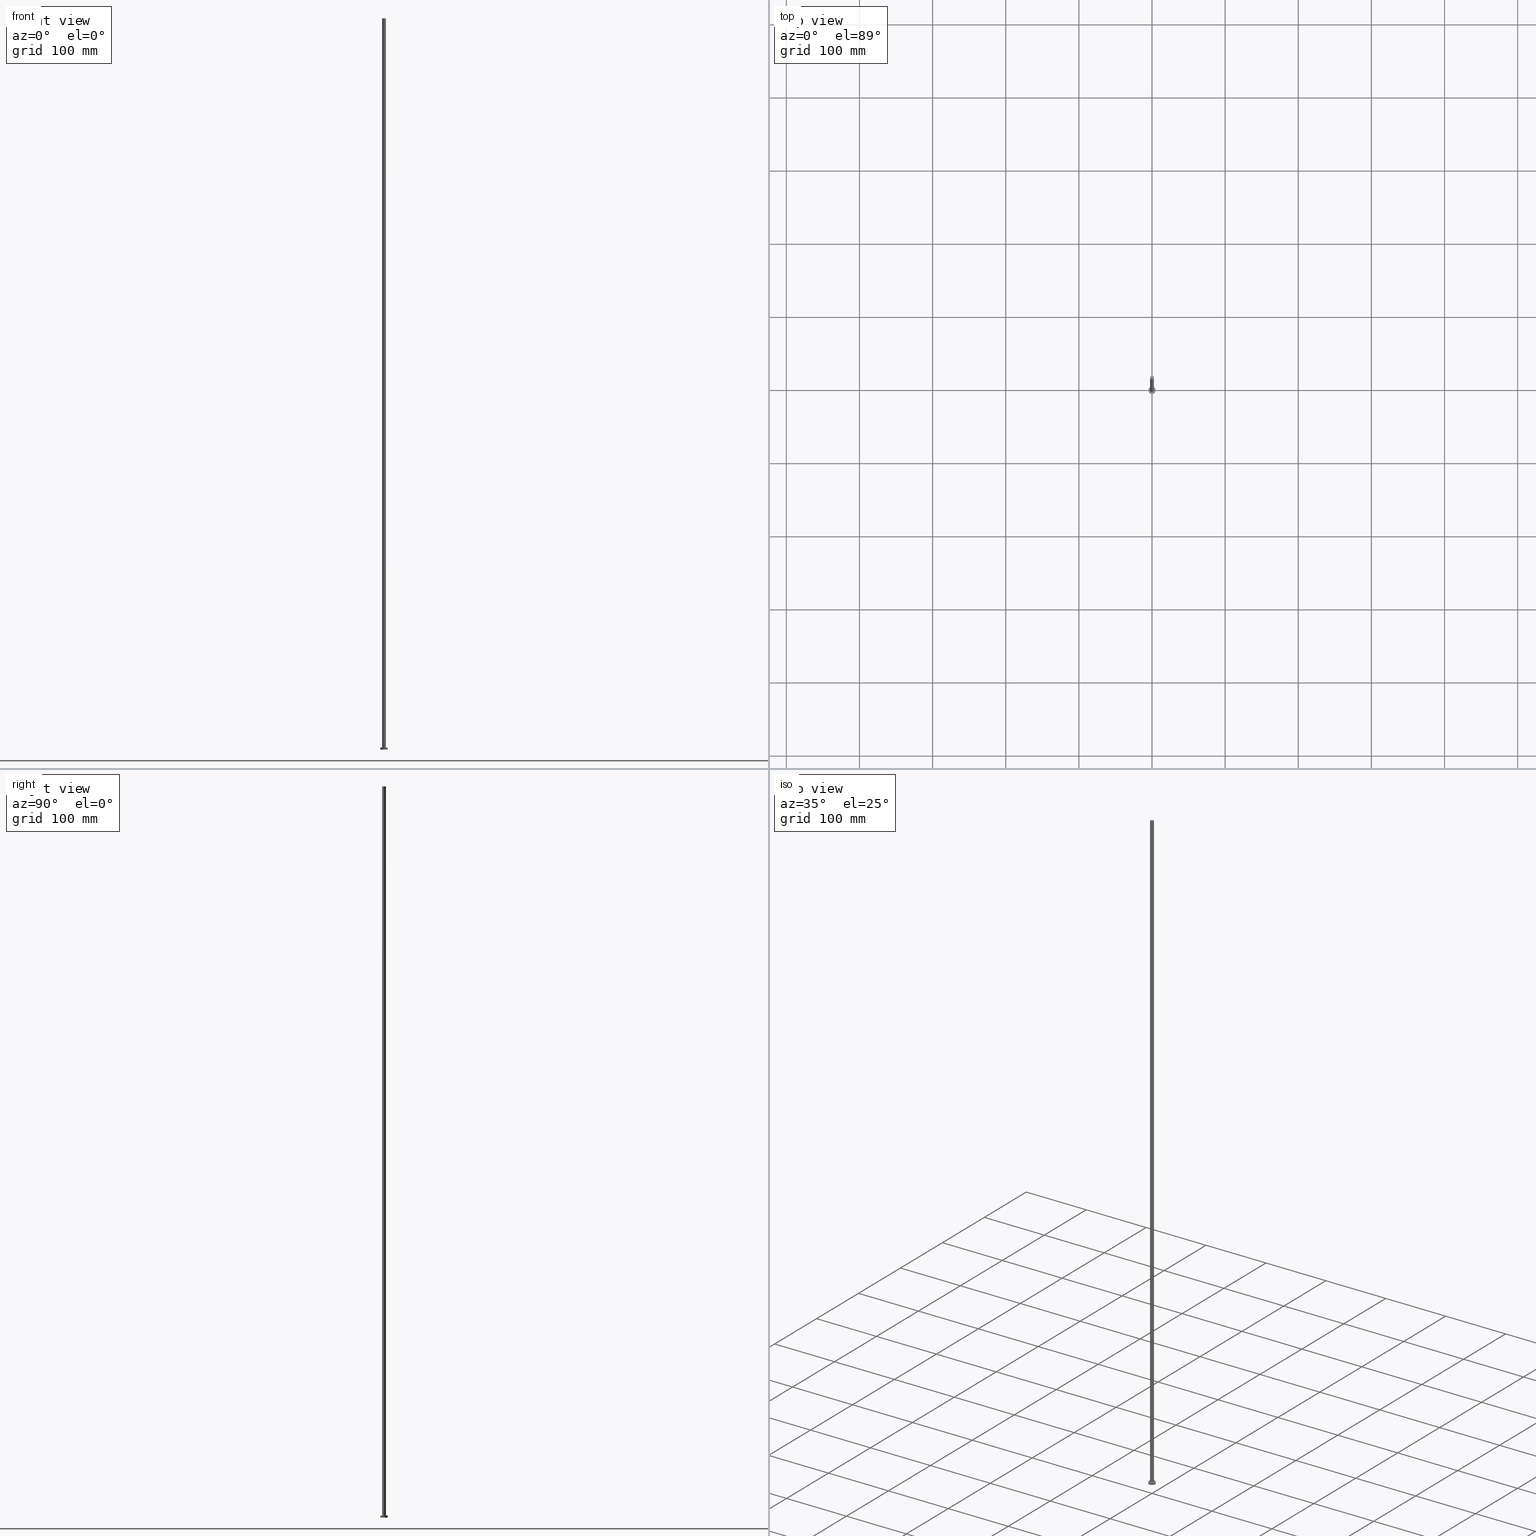
[diagram: canonical four-view strip — front | top / right | iso, engineering-drawing reading convention]
A machine part, canonical four-view strip (front | top / right | iso — engineering-drawing reading convention). The complete STEP part file that produces these views, byte-faithful:
ISO-10303-21;
HEADER;
FILE_DESCRIPTION (( 'STEP AP203' ),
    '1' );
FILE_NAME ('1fdd.STEP',
    '2023-02-12T12:28:38',
    ( '' ),
    ( '' ),
    'SwSTEP 2.0',
    'SolidWorks 2019',
    '' );
FILE_SCHEMA (( 'CONFIG_CONTROL_DESIGN' ));
ENDSEC;

DATA;
#1 = DIRECTION ( 'NONE',  ( -0.000000000000000000, -0.000000000000000000, -1.000000000000000000 ) ) ;
#2 = PRODUCT_RELATED_PRODUCT_CATEGORY ( 'detail', '', ( #223 ) ) ;
#3 = CARTESIAN_POINT ( 'NONE',  ( 0.000000000000000000, 0.000000000000000000, 0.000000000000000000 ) ) ;
#4 = ORIENTED_EDGE ( 'NONE', *, *, #109, .F. ) ;
#5 = DIRECTION ( 'NONE',  ( -1.000000000000000000, 0.000000000000000000, 0.000000000000000000 ) ) ;
#6 = FACE_OUTER_BOUND ( 'NONE', #26, .T. ) ;
#7 = DIRECTION ( 'NONE',  ( 0.000000000000000000, 0.000000000000000000, 1.000000000000000000 ) ) ;
#8 = ORGANIZATION ( 'NEUR�EN�', 'NEUR�EN�', '' ) ;
#9 = AXIS2_PLACEMENT_3D ( 'NONE', #173, #243, #71 ) ;
#10 = CARTESIAN_POINT ( 'NONE',  ( 0.000000000000000000, 0.000000000000000000, 0.000000000000000000 ) ) ;
#11 = EDGE_CURVE ( 'NONE', #87, #127, #221, .T. ) ;
#12 = APPROVAL_DATE_TIME ( #196, #16 ) ;
#13 = MECHANICAL_CONTEXT ( 'NONE', #92, 'mechanical' ) ;
#14 = AXIS2_PLACEMENT_3D ( 'NONE', #222, #51, #206 ) ;
#15 = AXIS2_PLACEMENT_3D ( 'NONE', #10, #179, #158 ) ;
#16 = APPROVAL ( #226, 'NEUR�EN�' ) ;
#17 = PERSON_AND_ORGANIZATION_ROLE ( 'creator' ) ;
#18 =( LENGTH_UNIT ( ) NAMED_UNIT ( * ) SI_UNIT ( .MILLI., .METRE. ) );
#19 = APPROVAL_STATUS ( 'not_yet_approved' ) ;
#20 = APPROVAL_DATE_TIME ( #42, #50 ) ;
#21 = PERSON_AND_ORGANIZATION_ROLE ( 'classification_officer' ) ;
#22 = VERTEX_POINT ( 'NONE', #224 ) ;
#23 = FACE_OUTER_BOUND ( 'NONE', #43, .T. ) ;
#24 = CC_DESIGN_PERSON_AND_ORGANIZATION_ASSIGNMENT ( #121, #17, ( #86 ) ) ;
#25 = CARTESIAN_POINT ( 'NONE',  ( -2.500000000000000000, 0.000000000000000000, 1000.000000000000000 ) ) ;
#26 = EDGE_LOOP ( 'NONE', ( #105, #166, #64, #142 ) ) ;
#27 = EDGE_CURVE ( 'NONE', #187, #87, #53, .T. ) ;
#28 = LINE ( 'NONE', #49, #152 ) ;
#29 = DIRECTION ( 'NONE',  ( 0.000000000000000000, 0.000000000000000000, 1.000000000000000000 ) ) ;
#30 =( GEOMETRIC_REPRESENTATION_CONTEXT ( 3 ) GLOBAL_UNCERTAINTY_ASSIGNED_CONTEXT ( ( #188 ) ) GLOBAL_UNIT_ASSIGNED_CONTEXT ( ( #18, #96, #162 ) ) REPRESENTATION_CONTEXT ( 'NONE', 'WORKASPACE' ) );
#31 = CARTESIAN_POINT ( 'NONE',  ( 2.500000000000000000, 3.061616997868383141E-16, 1000.000000000000000 ) ) ;
#32 = CARTESIAN_POINT ( 'NONE',  ( 0.000000000000000000, 0.000000000000000000, 3.000000000000000000 ) ) ;
#33 = CARTESIAN_POINT ( 'NONE',  ( 0.000000000000000000, 0.000000000000000000, 3.000000000000000000 ) ) ;
#34 = EDGE_CURVE ( 'NONE', #187, #200, #195, .T. ) ;
#35 = DIRECTION ( 'NONE',  ( -0.000000000000000000, -0.000000000000000000, -1.000000000000000000 ) ) ;
#36 = CIRCLE ( 'NONE', #102, 2.500000000000000000 ) ;
#37 = ADVANCED_FACE ( 'NONE', ( #128 ), #184, .T. ) ;
#38 = CARTESIAN_POINT ( 'NONE',  ( 2.500000000000000000, 3.061616997868383141E-16, 1000.000000000000000 ) ) ;
#39 = VECTOR ( 'NONE', #1, 1000.000000000000000 ) ;
#40 = ORIENTED_EDGE ( 'NONE', *, *, #235, .T. ) ;
#41 = SECURITY_CLASSIFICATION_LEVEL ( 'unclassified' ) ;
#42 = DATE_AND_TIME ( #98, #78 ) ;
#43 = EDGE_LOOP ( 'NONE', ( #90, #216, #107, #215 ) ) ;
#44 = DIRECTION ( 'NONE',  ( 1.000000000000000000, 0.000000000000000000, -0.000000000000000000 ) ) ;
#45 = VERTEX_POINT ( 'NONE', #231 ) ;
#46 = SECURITY_CLASSIFICATION ( '', '', #41 ) ;
#47 = DIRECTION ( 'NONE',  ( 1.000000000000000000, 0.000000000000000000, 0.000000000000000000 ) ) ;
#48 = ORIENTED_EDGE ( 'NONE', *, *, #34, .T. ) ;
#49 = CARTESIAN_POINT ( 'NONE',  ( -5.000000000000000000, 0.000000000000000000, 3.000000000000000000 ) ) ;
#50 = APPROVAL ( #19, 'NEUR�EN�' ) ;
#51 = DIRECTION ( 'NONE',  ( 0.000000000000000000, 0.000000000000000000, 1.000000000000000000 ) ) ;
#52 = VECTOR ( 'NONE', #132, 1000.000000000000000 ) ;
#53 = LINE ( 'NONE', #135, #122 ) ;
#54 = CARTESIAN_POINT ( 'NONE',  ( 0.000000000000000000, 0.000000000000000000, 1000.000000000000000 ) ) ;
#55 = APPROVAL_ROLE ( '' ) ;
#56 = COORDINATED_UNIVERSAL_TIME_OFFSET ( 1, 0, .AHEAD. ) ;
#57 = PERSON_AND_ORGANIZATION ( #214, #8 ) ;
#58 = CIRCLE ( 'NONE', #163, 5.000000000000000000 ) ;
#59 = ADVANCED_FACE ( 'NONE', ( #65 ), #232, .F. ) ;
#60 = DIRECTION ( 'NONE',  ( 0.000000000000000000, 0.000000000000000000, 1.000000000000000000 ) ) ;
#61 = FACE_OUTER_BOUND ( 'NONE', #85, .T. ) ;
#62 = EDGE_LOOP ( 'NONE', ( #185, #252, #203, #143 ) ) ;
#63 = PERSON_AND_ORGANIZATION_ROLE ( 'design_supplier' ) ;
#64 = ORIENTED_EDGE ( 'NONE', *, *, #11, .T. ) ;
#65 = FACE_OUTER_BOUND ( 'NONE', #254, .T. ) ;
#66 = PERSON_AND_ORGANIZATION_ROLE ( 'creator' ) ;
#67 = EDGE_LOOP ( 'NONE', ( #40, #48 ) ) ;
#68 = CARTESIAN_POINT ( 'NONE',  ( 0.000000000000000000, 0.000000000000000000, 3.000000000000000000 ) ) ;
#69 = ADVANCED_BREP_SHAPE_REPRESENTATION ( '1fdd', ( #182, #15 ), #30 ) ;
#70 = DIRECTION ( 'NONE',  ( 0.000000000000000000, 0.000000000000000000, 1.000000000000000000 ) ) ;
#71 = DIRECTION ( 'NONE',  ( 1.000000000000000000, 0.000000000000000000, 0.000000000000000000 ) ) ;
#72 = AXIS2_PLACEMENT_3D ( 'NONE', #81, #83, #165 ) ;
#73 = ADVANCED_FACE ( 'NONE', ( #61 ), #101, .T. ) ;
#74 = CARTESIAN_POINT ( 'NONE',  ( -5.000000000000000000, 0.000000000000000000, 3.000000000000000000 ) ) ;
#75 = APPLICATION_PROTOCOL_DEFINITION ( 'international standard', 'config_control_design', 1994, #172 ) ;
#76 = DATE_TIME_ROLE ( 'creation_date' ) ;
#77 = CC_DESIGN_APPROVAL ( #50, ( #46 ) ) ;
#78 = LOCAL_TIME ( 13, 28, 38.00000000000000000, #227 ) ;
#79 = ORIENTED_EDGE ( 'NONE', *, *, #201, .F. ) ;
#80 = EDGE_CURVE ( 'NONE', #45, #22, #213, .T. ) ;
#81 = CARTESIAN_POINT ( 'NONE',  ( 0.000000000000000000, 0.000000000000000000, 1000.000000000000000 ) ) ;
#82 = COORDINATED_UNIVERSAL_TIME_OFFSET ( 1, 0, .AHEAD. ) ;
#83 = DIRECTION ( 'NONE',  ( -0.000000000000000000, -0.000000000000000000, -1.000000000000000000 ) ) ;
#84 = CARTESIAN_POINT ( 'NONE',  ( 5.000000000000000000, 6.123233995736766282E-16, 0.000000000000000000 ) ) ;
#85 = EDGE_LOOP ( 'NONE', ( #145, #151 ) ) ;
#86 = PRODUCT_DEFINITION_FORMATION_WITH_SPECIFIED_SOURCE ( 'LIBOVOLN�', '', #223, .NOT_KNOWN. ) ;
#87 = VERTEX_POINT ( 'NONE', #84 ) ;
#88 = CC_DESIGN_APPROVAL ( #16, ( #86 ) ) ;
#89 = CARTESIAN_POINT ( 'NONE',  ( 0.000000000000000000, 0.000000000000000000, 3.000000000000000000 ) ) ;
#90 = ORIENTED_EDGE ( 'NONE', *, *, #27, .F. ) ;
#91 = DIRECTION ( 'NONE',  ( -0.000000000000000000, -0.000000000000000000, -1.000000000000000000 ) ) ;
#92 = APPLICATION_CONTEXT ( 'configuration controlled 3d designs of mechanical parts and assemblies' ) ;
#93 = DATE_AND_TIME ( #189, #183 ) ;
#94 = AXIS2_PLACEMENT_3D ( 'NONE', #89, #29, #174 ) ;
#95 = CIRCLE ( 'NONE', #230, 2.500000000000000000 ) ;
#96 =( NAMED_UNIT ( * ) PLANE_ANGLE_UNIT ( ) SI_UNIT ( $, .RADIAN. ) );
#97 = APPROVAL ( #248, 'NEUR�EN�' ) ;
#98 = CALENDAR_DATE ( 2023, 12, 2 ) ;
#99 = DATE_AND_TIME ( #138, #233 ) ;
#100 = CC_DESIGN_DATE_AND_TIME_ASSIGNMENT ( #125, #180, ( #46 ) ) ;
#101 = PLANE ( 'NONE',  #240 ) ;
#102 = AXIS2_PLACEMENT_3D ( 'NONE', #32, #70, #155 ) ;
#103 = DIRECTION ( 'NONE',  ( 1.000000000000000000, 0.000000000000000000, 0.000000000000000000 ) ) ;
#104 = VERTEX_POINT ( 'NONE', #38 ) ;
#105 = ORIENTED_EDGE ( 'NONE', *, *, #34, .F. ) ;
#106 = CIRCLE ( 'NONE', #94, 5.000000000000000000 ) ;
#107 = ORIENTED_EDGE ( 'NONE', *, *, #167, .T. ) ;
#108 = CARTESIAN_POINT ( 'NONE',  ( 0.000000000000000000, 0.000000000000000000, 0.000000000000000000 ) ) ;
#109 = EDGE_CURVE ( 'NONE', #45, #104, #95, .T. ) ;
#110 = DIRECTION ( 'NONE',  ( 1.000000000000000000, 0.000000000000000000, 0.000000000000000000 ) ) ;
#111 = FACE_BOUND ( 'NONE', #171, .T. ) ;
#112 = ADVANCED_FACE ( 'NONE', ( #6 ), #114, .T. ) ;
#113 = ORIENTED_EDGE ( 'NONE', *, *, #80, .T. ) ;
#114 = CYLINDRICAL_SURFACE ( 'NONE', #210, 5.000000000000000000 ) ;
#115 = FACE_OUTER_BOUND ( 'NONE', #67, .T. ) ;
#116 = PLANE ( 'NONE',  #14 ) ;
#117 = DIRECTION ( 'NONE',  ( 0.000000000000000000, 0.000000000000000000, 1.000000000000000000 ) ) ;
#118 = AXIS2_PLACEMENT_3D ( 'NONE', #3, #60, #44 ) ;
#119 = DESIGN_CONTEXT ( 'detailed design', #172, 'design' ) ;
#120 = PRODUCT_DEFINITION ( 'NEZN�M�', '', #86, #119 ) ;
#121 = PERSON_AND_ORGANIZATION ( #214, #8 ) ;
#122 = VECTOR ( 'NONE', #207, 1000.000000000000000 ) ;
#123 = APPLICATION_PROTOCOL_DEFINITION ( 'international standard', 'config_control_design', 1994, #92 ) ;
#124 = ORIENTED_EDGE ( 'NONE', *, *, #11, .F. ) ;
#125 = DATE_AND_TIME ( #229, #169 ) ;
#126 = ORIENTED_EDGE ( 'NONE', *, *, #245, .F. ) ;
#127 = VERTEX_POINT ( 'NONE', #220 ) ;
#128 = FACE_OUTER_BOUND ( 'NONE', #62, .T. ) ;
#129 = CIRCLE ( 'NONE', #9, 2.500000000000000000 ) ;
#130 = DIRECTION ( 'NONE',  ( 1.000000000000000000, 0.000000000000000000, -0.000000000000000000 ) ) ;
#131 = DIRECTION ( 'NONE',  ( 1.000000000000000000, 0.000000000000000000, 0.000000000000000000 ) ) ;
#132 = DIRECTION ( 'NONE',  ( -0.000000000000000000, -0.000000000000000000, -1.000000000000000000 ) ) ;
#133 = APPROVAL_PERSON_ORGANIZATION ( #159, #16, #136 ) ;
#134 = EDGE_CURVE ( 'NONE', #104, #45, #129, .T. ) ;
#135 = CARTESIAN_POINT ( 'NONE',  ( 5.000000000000000000, 6.123233995736766282E-16, 3.000000000000000000 ) ) ;
#136 = APPROVAL_ROLE ( '' ) ;
#137 = SHAPE_DEFINITION_REPRESENTATION ( #190, #69 ) ;
#138 = CALENDAR_DATE ( 2023, 12, 2 ) ;
#139 = DIRECTION ( 'NONE',  ( 0.000000000000000000, 0.000000000000000000, 1.000000000000000000 ) ) ;
#140 = AXIS2_PLACEMENT_3D ( 'NONE', #54, #157, #5 ) ;
#141 = DIRECTION ( 'NONE',  ( -1.000000000000000000, 0.000000000000000000, 0.000000000000000000 ) ) ;
#142 = ORIENTED_EDGE ( 'NONE', *, *, #167, .F. ) ;
#143 = ORIENTED_EDGE ( 'NONE', *, *, #80, .F. ) ;
#144 = PERSON_AND_ORGANIZATION ( #214, #8 ) ;
#145 = ORIENTED_EDGE ( 'NONE', *, *, #109, .T. ) ;
#146 = CC_DESIGN_PERSON_AND_ORGANIZATION_ASSIGNMENT ( #250, #63, ( #86 ) ) ;
#147 = CARTESIAN_POINT ( 'NONE',  ( 0.000000000000000000, 0.000000000000000000, 1000.000000000000000 ) ) ;
#148 = ORIENTED_EDGE ( 'NONE', *, *, #201, .T. ) ;
#149 = DIRECTION ( 'NONE',  ( 0.000000000000000000, 0.000000000000000000, 1.000000000000000000 ) ) ;
#150 = CC_DESIGN_PERSON_AND_ORGANIZATION_ASSIGNMENT ( #228, #161, ( #223 ) ) ;
#151 = ORIENTED_EDGE ( 'NONE', *, *, #134, .T. ) ;
#152 = VECTOR ( 'NONE', #91, 1000.000000000000000 ) ;
#153 = DIRECTION ( 'NONE',  ( 0.000000000000000000, 0.000000000000000000, 1.000000000000000000 ) ) ;
#154 = COORDINATED_UNIVERSAL_TIME_OFFSET ( 1, 0, .AHEAD. ) ;
#155 = DIRECTION ( 'NONE',  ( 1.000000000000000000, 0.000000000000000000, 0.000000000000000000 ) ) ;
#156 = CARTESIAN_POINT ( 'NONE',  ( 0.000000000000000000, 0.000000000000000000, 0.000000000000000000 ) ) ;
#157 = DIRECTION ( 'NONE',  ( -0.000000000000000000, -0.000000000000000000, -1.000000000000000000 ) ) ;
#158 = DIRECTION ( 'NONE',  ( 1.000000000000000000, 0.000000000000000000, 0.000000000000000000 ) ) ;
#159 = PERSON_AND_ORGANIZATION ( #214, #8 ) ;
#160 = CC_DESIGN_APPROVAL ( #97, ( #120 ) ) ;
#161 = PERSON_AND_ORGANIZATION_ROLE ( 'design_owner' ) ;
#162 =( NAMED_UNIT ( * ) SI_UNIT ( $, .STERADIAN. ) SOLID_ANGLE_UNIT ( ) );
#163 = AXIS2_PLACEMENT_3D ( 'NONE', #108, #149, #110 ) ;
#164 = APPROVAL_PERSON_ORGANIZATION ( #249, #97, #55 ) ;
#165 = DIRECTION ( 'NONE',  ( -1.000000000000000000, 0.000000000000000000, 0.000000000000000000 ) ) ;
#166 = ORIENTED_EDGE ( 'NONE', *, *, #27, .T. ) ;
#167 = EDGE_CURVE ( 'NONE', #200, #127, #28, .T. ) ;
#168 = AXIS2_PLACEMENT_3D ( 'NONE', #225, #153, #47 ) ;
#169 = LOCAL_TIME ( 13, 28, 38.00000000000000000, #82 ) ;
#170 = CARTESIAN_POINT ( 'NONE',  ( 0.000000000000000000, 0.000000000000000000, 1000.000000000000000 ) ) ;
#171 = EDGE_LOOP ( 'NONE', ( #79, #199 ) ) ;
#172 = APPLICATION_CONTEXT ( 'configuration controlled 3d designs of mechanical parts and assemblies' ) ;
#173 = CARTESIAN_POINT ( 'NONE',  ( 0.000000000000000000, 0.000000000000000000, 1000.000000000000000 ) ) ;
#174 = DIRECTION ( 'NONE',  ( 1.000000000000000000, 0.000000000000000000, 0.000000000000000000 ) ) ;
#175 = CC_DESIGN_PERSON_AND_ORGANIZATION_ASSIGNMENT ( #251, #66, ( #120 ) ) ;
#176 = DIRECTION ( 'NONE',  ( -1.000000000000000000, 0.000000000000000000, 0.000000000000000000 ) ) ;
#177 = DIRECTION ( 'NONE',  ( 1.000000000000000000, 0.000000000000000000, 0.000000000000000000 ) ) ;
#178 = CIRCLE ( 'NONE', #168, 2.500000000000000000 ) ;
#179 = DIRECTION ( 'NONE',  ( 0.000000000000000000, 0.000000000000000000, 1.000000000000000000 ) ) ;
#180 = DATE_TIME_ROLE ( 'classification_date' ) ;
#181 = CALENDAR_DATE ( 2023, 12, 2 ) ;
#182 = MANIFOLD_SOLID_BREP ( 'P�idat vysunut�m3', #217 ) ;
#183 = LOCAL_TIME ( 13, 28, 38.00000000000000000, #154 ) ;
#184 = CYLINDRICAL_SURFACE ( 'NONE', #72, 2.500000000000000000 ) ;
#185 = ORIENTED_EDGE ( 'NONE', *, *, #134, .F. ) ;
#186 = LINE ( 'NONE', #31, #52 ) ;
#187 = VERTEX_POINT ( 'NONE', #237 ) ;
#188 = UNCERTAINTY_MEASURE_WITH_UNIT (LENGTH_MEASURE( 1.000000000000000082E-05 ), #18, 'distance_accuracy_value', 'NONE');
#189 = CALENDAR_DATE ( 2023, 12, 2 ) ;
#190 = PRODUCT_DEFINITION_SHAPE ( 'NONE', 'NONE',  #120 ) ;
#191 = EDGE_CURVE ( 'NONE', #239, #22, #36, .T. ) ;
#192 = DIRECTION ( 'NONE',  ( 0.000000000000000000, 0.000000000000000000, 1.000000000000000000 ) ) ;
#193 = APPROVAL_PERSON_ORGANIZATION ( #57, #50, #209 ) ;
#194 = DIRECTION ( 'NONE',  ( -0.000000000000000000, -0.000000000000000000, -1.000000000000000000 ) ) ;
#195 = CIRCLE ( 'NONE', #247, 5.000000000000000000 ) ;
#196 = DATE_AND_TIME ( #181, #238 ) ;
#197 = ADVANCED_FACE ( 'NONE', ( #111, #115 ), #116, .T. ) ;
#198 = AXIS2_PLACEMENT_3D ( 'NONE', #68, #35, #141 ) ;
#199 = ORIENTED_EDGE ( 'NONE', *, *, #191, .F. ) ;
#200 = VERTEX_POINT ( 'NONE', #74 ) ;
#201 = EDGE_CURVE ( 'NONE', #22, #239, #178, .T. ) ;
#202 = EDGE_LOOP ( 'NONE', ( #218, #4, #113, #148 ) ) ;
#203 = ORIENTED_EDGE ( 'NONE', *, *, #191, .T. ) ;
#204 = EDGE_CURVE ( 'NONE', #104, #239, #186, .T. ) ;
#205 = FACE_OUTER_BOUND ( 'NONE', #202, .T. ) ;
#206 = DIRECTION ( 'NONE',  ( 1.000000000000000000, 0.000000000000000000, -0.000000000000000000 ) ) ;
#207 = DIRECTION ( 'NONE',  ( -0.000000000000000000, -0.000000000000000000, -1.000000000000000000 ) ) ;
#208 = CARTESIAN_POINT ( 'NONE',  ( 0.000000000000000000, 0.000000000000000000, 3.000000000000000000 ) ) ;
#209 = APPROVAL_ROLE ( '' ) ;
#210 = AXIS2_PLACEMENT_3D ( 'NONE', #208, #194, #176 ) ;
#211 = COORDINATED_UNIVERSAL_TIME_OFFSET ( 1, 0, .AHEAD. ) ;
#212 = ADVANCED_FACE ( 'NONE', ( #205 ), #241, .T. ) ;
#213 = LINE ( 'NONE', #25, #39 ) ;
#214 = PERSON ( 'NEUR�EN�', 'NEUR�EN�', 'NEUR�EN�', ('NEUR�EN�'), ('NEUR�EN�'), ('NEUR�EN�') ) ;
#215 = ORIENTED_EDGE ( 'NONE', *, *, #245, .T. ) ;
#216 = ORIENTED_EDGE ( 'NONE', *, *, #235, .F. ) ;
#217 = CLOSED_SHELL ( 'NONE', ( #37, #112, #246, #197, #59, #212, #73 ) ) ;
#218 = ORIENTED_EDGE ( 'NONE', *, *, #204, .F. ) ;
#219 = CC_DESIGN_SECURITY_CLASSIFICATION ( #46, ( #86 ) ) ;
#220 = CARTESIAN_POINT ( 'NONE',  ( -5.000000000000000000, 0.000000000000000000, 0.000000000000000000 ) ) ;
#221 = CIRCLE ( 'NONE', #244, 5.000000000000000000 ) ;
#222 = CARTESIAN_POINT ( 'NONE',  ( 0.000000000000000000, 0.000000000000000000, 3.000000000000000000 ) ) ;
#223 = PRODUCT ( '1fdd', '1fdd', '', ( #13 ) ) ;
#224 = CARTESIAN_POINT ( 'NONE',  ( -2.500000000000000000, 0.000000000000000000, 3.000000000000000000 ) ) ;
#225 = CARTESIAN_POINT ( 'NONE',  ( 0.000000000000000000, 0.000000000000000000, 3.000000000000000000 ) ) ;
#226 = APPROVAL_STATUS ( 'not_yet_approved' ) ;
#227 = COORDINATED_UNIVERSAL_TIME_OFFSET ( 1, 0, .AHEAD. ) ;
#228 = PERSON_AND_ORGANIZATION ( #214, #8 ) ;
#229 = CALENDAR_DATE ( 2023, 12, 2 ) ;
#230 = AXIS2_PLACEMENT_3D ( 'NONE', #147, #7, #131 ) ;
#231 = CARTESIAN_POINT ( 'NONE',  ( -2.500000000000000000, 0.000000000000000000, 1000.000000000000000 ) ) ;
#232 = PLANE ( 'NONE',  #118 ) ;
#233 = LOCAL_TIME ( 13, 28, 38.00000000000000000, #56 ) ;
#234 = CARTESIAN_POINT ( 'NONE',  ( 2.500000000000000000, 3.061616997868383141E-16, 3.000000000000000000 ) ) ;
#235 = EDGE_CURVE ( 'NONE', #200, #187, #106, .T. ) ;
#236 = CC_DESIGN_DATE_AND_TIME_ASSIGNMENT ( #93, #76, ( #120 ) ) ;
#237 = CARTESIAN_POINT ( 'NONE',  ( 5.000000000000000000, 6.123233995736766282E-16, 3.000000000000000000 ) ) ;
#238 = LOCAL_TIME ( 13, 28, 38.00000000000000000, #211 ) ;
#239 = VERTEX_POINT ( 'NONE', #234 ) ;
#240 = AXIS2_PLACEMENT_3D ( 'NONE', #170, #139, #130 ) ;
#241 = CYLINDRICAL_SURFACE ( 'NONE', #140, 2.500000000000000000 ) ;
#242 = CC_DESIGN_PERSON_AND_ORGANIZATION_ASSIGNMENT ( #144, #21, ( #46 ) ) ;
#243 = DIRECTION ( 'NONE',  ( 0.000000000000000000, 0.000000000000000000, 1.000000000000000000 ) ) ;
#244 = AXIS2_PLACEMENT_3D ( 'NONE', #156, #192, #177 ) ;
#245 = EDGE_CURVE ( 'NONE', #127, #87, #58, .T. ) ;
#246 = ADVANCED_FACE ( 'NONE', ( #23 ), #255, .T. ) ;
#247 = AXIS2_PLACEMENT_3D ( 'NONE', #33, #117, #103 ) ;
#248 = APPROVAL_STATUS ( 'not_yet_approved' ) ;
#249 = PERSON_AND_ORGANIZATION ( #214, #8 ) ;
#250 = PERSON_AND_ORGANIZATION ( #214, #8 ) ;
#251 = PERSON_AND_ORGANIZATION ( #214, #8 ) ;
#252 = ORIENTED_EDGE ( 'NONE', *, *, #204, .T. ) ;
#253 = APPROVAL_DATE_TIME ( #99, #97 ) ;
#254 = EDGE_LOOP ( 'NONE', ( #126, #124 ) ) ;
#255 = CYLINDRICAL_SURFACE ( 'NONE', #198, 5.000000000000000000 ) ;
ENDSEC;
END-ISO-10303-21;
